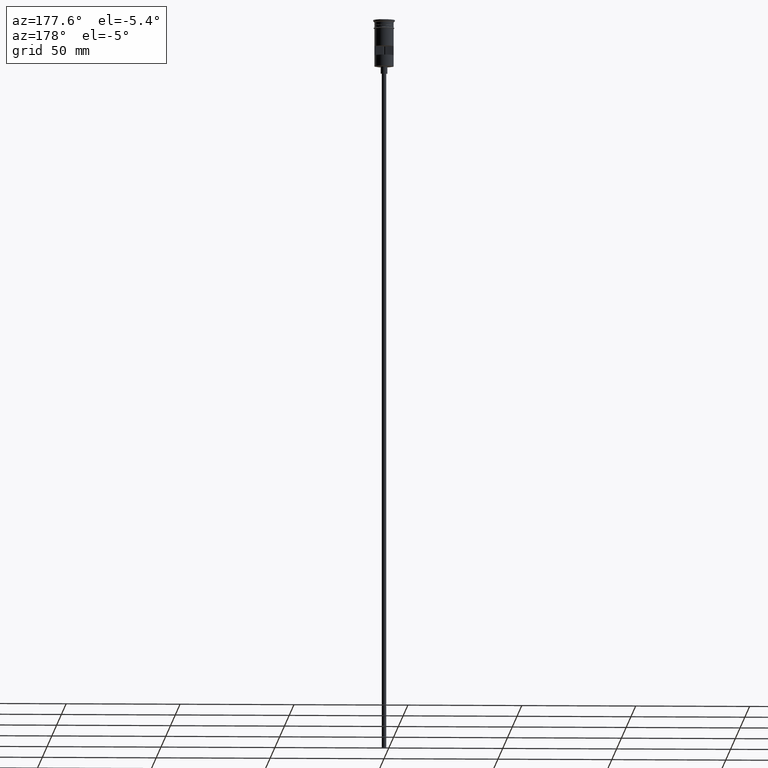
[diagram: clean part render]
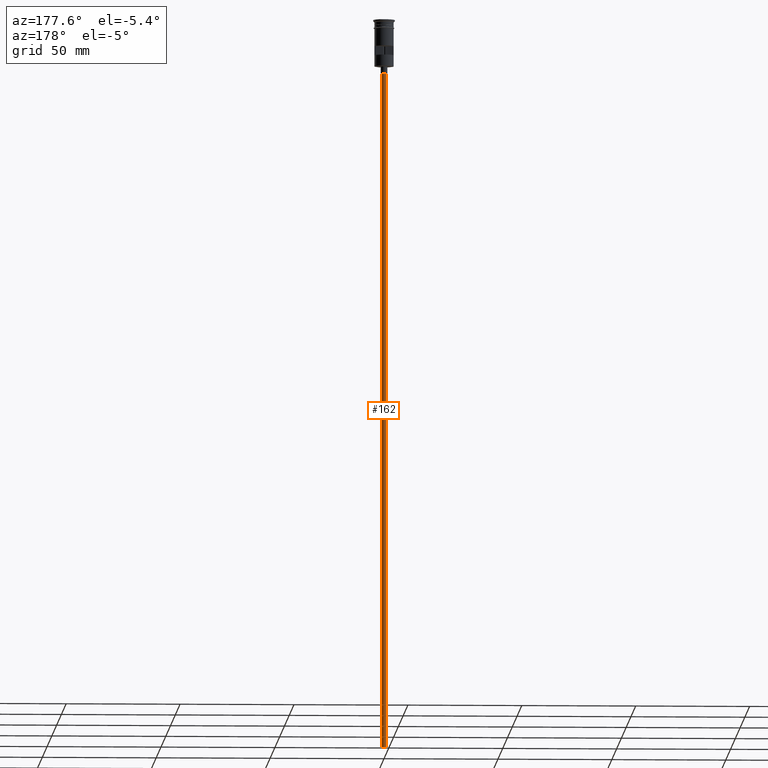
[diagram: same view with one face highlighted and labeled with its STEP entity id]
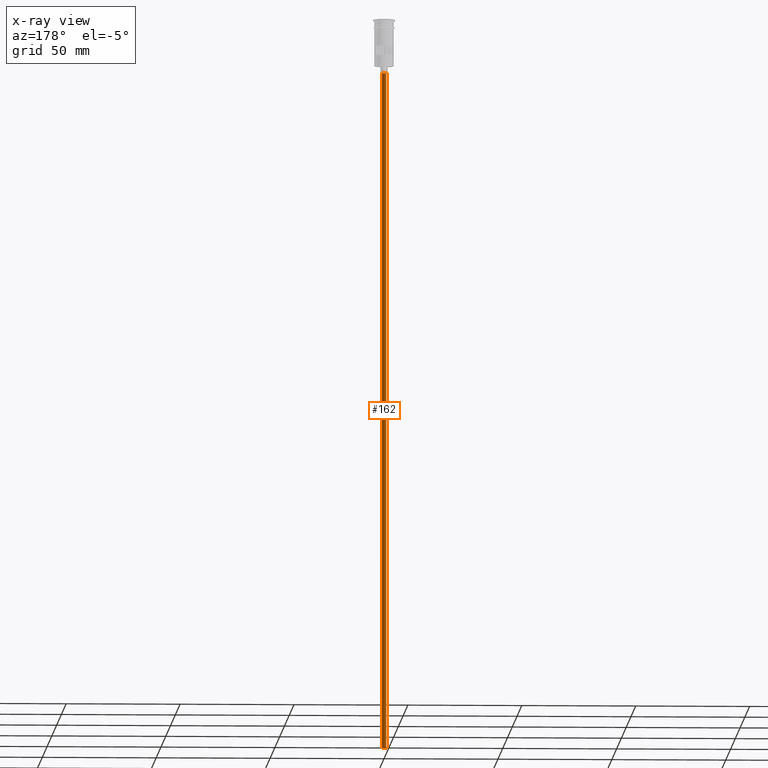
[diagram: x-ray of the same camera — body ghosted, the highlighted face saturated]
A machine part, auxiliary view. The second image highlights one B-rep face of the part: STEP entity #162.
The next image is the same camera in x-ray: the body ghosted, the highlighted face saturated — about 0% of this face is hidden behind the body in this view.
In plain terms, the highlighted cylindrical surface (edge-blend (fillet) strip) has radius 1 mm, axis along (-0, -0, 1).
Its self-contained STEP definition (entity closure, byte-faithful):
#25 = EDGE_CURVE ( 'NONE', #1216, #901, #1436, .T. ) ;
#63 = ORIENTED_EDGE ( 'NONE', *, *, #846, .F. ) ;
#125 = CARTESIAN_POINT ( 'NONE',  ( 0.000000000000000000, 0.000000000000000000, -320.5000000000000000 ) ) ;
#162 = ADVANCED_FACE ( 'NONE', ( #1371 ), #378, .T. ) ;
#260 = EDGE_LOOP ( 'NONE', ( #578, #593, #1282, #63 ) ) ;
#271 = DIRECTION ( 'NONE',  ( -0.000000000000000000, -0.000000000000000000, 1.000000000000000000 ) ) ;
#306 = CARTESIAN_POINT ( 'NONE',  ( 0.9999999999999997780, 0.000000000000000000, -320.5000000000000000 ) ) ;
#324 = VECTOR ( 'NONE', #271, 1000.000000000000000 ) ;
#350 = EDGE_CURVE ( 'NONE', #1216, #1329, #541, .T. ) ;
#357 = CARTESIAN_POINT ( 'NONE',  ( 0.000000000000000000, 0.000000000000000000, -320.5000000000000000 ) ) ;
#378 = CYLINDRICAL_SURFACE ( 'NONE', #1460, 0.9999999999999997780 ) ;
#461 = AXIS2_PLACEMENT_3D ( 'NONE', #767, #1127, #1365 ) ;
#464 = VECTOR ( 'NONE', #883, 1000.000000000000000 ) ;
#534 = AXIS2_PLACEMENT_3D ( 'NONE', #357, #721, #1069 ) ;
#541 = LINE ( 'NONE', #1510, #464 ) ;
#578 = ORIENTED_EDGE ( 'NONE', *, *, #25, .F. ) ;
#582 = CIRCLE ( 'NONE', #461, 0.9999999999999997780 ) ;
#593 = ORIENTED_EDGE ( 'NONE', *, *, #350, .T. ) ;
#616 = DIRECTION ( 'NONE',  ( -0.000000000000000000, -0.000000000000000000, 1.000000000000000000 ) ) ;
#659 = CARTESIAN_POINT ( 'NONE',  ( -0.9999999999999997780, 1.224646799147352961E-16, -320.5000000000000000 ) ) ;
#667 = VERTEX_POINT ( 'NONE', #999 ) ;
#686 = CARTESIAN_POINT ( 'NONE',  ( 0.9999999999999997780, 0.000000000000000000, -320.5000000000000000 ) ) ;
#721 = DIRECTION ( 'NONE',  ( 0.000000000000000000, 0.000000000000000000, -1.000000000000000000 ) ) ;
#767 = CARTESIAN_POINT ( 'NONE',  ( 0.000000000000000000, 0.000000000000000000, -23.49999999999999645 ) ) ;
#846 = EDGE_CURVE ( 'NONE', #901, #667, #1411, .T. ) ;
#862 = DIRECTION ( 'NONE',  ( 1.000000000000000000, 0.000000000000000000, 0.000000000000000000 ) ) ;
#883 = DIRECTION ( 'NONE',  ( -0.000000000000000000, -0.000000000000000000, 1.000000000000000000 ) ) ;
#901 = VERTEX_POINT ( 'NONE', #686 ) ;
#933 = CARTESIAN_POINT ( 'NONE',  ( -0.9999999999999997780, 1.224646799147352961E-16, -23.49999999999999645 ) ) ;
#999 = CARTESIAN_POINT ( 'NONE',  ( 0.9999999999999997780, 0.000000000000000000, -23.49999999999999645 ) ) ;
#1069 = DIRECTION ( 'NONE',  ( -1.000000000000000000, 0.000000000000000000, 0.000000000000000000 ) ) ;
#1127 = DIRECTION ( 'NONE',  ( 0.000000000000000000, 0.000000000000000000, -1.000000000000000000 ) ) ;
#1216 = VERTEX_POINT ( 'NONE', #659 ) ;
#1282 = ORIENTED_EDGE ( 'NONE', *, *, #1599, .T. ) ;
#1329 = VERTEX_POINT ( 'NONE', #933 ) ;
#1365 = DIRECTION ( 'NONE',  ( -1.000000000000000000, 0.000000000000000000, 0.000000000000000000 ) ) ;
#1371 = FACE_OUTER_BOUND ( 'NONE', #260, .T. ) ;
#1411 = LINE ( 'NONE', #306, #324 ) ;
#1436 = CIRCLE ( 'NONE', #534, 0.9999999999999997780 ) ;
#1460 = AXIS2_PLACEMENT_3D ( 'NONE', #125, #616, #862 ) ;
#1510 = CARTESIAN_POINT ( 'NONE',  ( -0.9999999999999997780, 1.224646799147352961E-16, -320.5000000000000000 ) ) ;
#1599 = EDGE_CURVE ( 'NONE', #1329, #667, #582, .T. ) ;